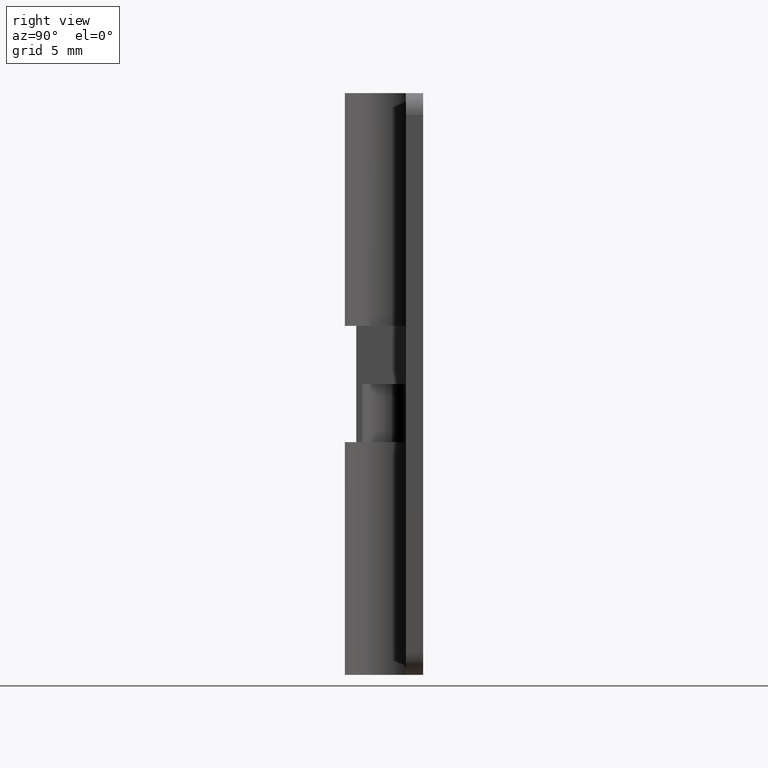
[diagram: clean part render]
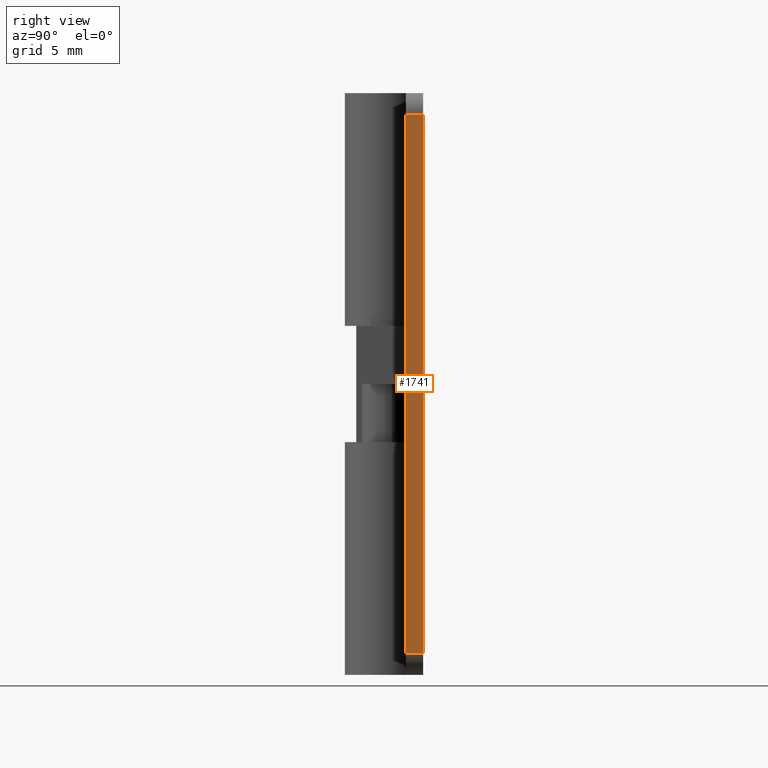
[diagram: same view with one face highlighted and labeled with its STEP entity id]
A machine part, right view. The second image highlights one B-rep face of the part: STEP entity #1741.
In plain terms, the highlighted face is a freeform B-spline surface patch.
Its self-contained STEP definition (entity closure, byte-faithful):
#1433=CARTESIAN_POINT('',(14.999993000000000,1.500000000000115,38.499953999999953));
#1434=VERTEX_POINT('',#1433);
#1452=CARTESIAN_POINT('',(14.999993000000000,2.699997000000110,38.499953999999953));
#1453=VERTEX_POINT('',#1452);
#1454=CARTESIAN_POINT('',(14.999993000000000,2.699997000000110,38.499953999999953));
#1455=CARTESIAN_POINT('',(14.999993000000000,1.500000000000115,38.499953999999953));
#1456=QUASI_UNIFORM_CURVE('',1,(#1454,#1455),.UNSPECIFIED.,.F.,.U.);
#1457=EDGE_CURVE('',#1453,#1434,#1456,.T.);
#1500=CARTESIAN_POINT('',(14.999993000000000,1.500000000000115,1.499962000000020));
#1501=VERTEX_POINT('',#1500);
#1522=CARTESIAN_POINT('',(14.999993000000000,2.699997000000110,1.499962000000020));
#1523=VERTEX_POINT('',#1522);
#1537=CARTESIAN_POINT('',(14.999993000000000,1.500000000000115,1.499962000000020));
#1538=CARTESIAN_POINT('',(14.999993000000000,2.699997000000110,1.499962000000020));
#1539=QUASI_UNIFORM_CURVE('',1,(#1537,#1538),.UNSPECIFIED.,.F.,.U.);
#1540=EDGE_CURVE('',#1501,#1523,#1539,.T.);
#1722=CARTESIAN_POINT('',(14.999993000000000,1.440060156463175,40.348103876016253));
#1723=CARTESIAN_POINT('',(14.999993000000000,1.440060156463175,-0.348188537627680));
#1724=CARTESIAN_POINT('',(14.999993000000000,2.759936789893005,40.348103876016253));
#1725=CARTESIAN_POINT('',(14.999993000000000,2.759936789893005,-0.348188537627680));
#1726=B_SPLINE_SURFACE_WITH_KNOTS('',1,1,((#1722,#1724),(#1723,#1725)),.UNSPECIFIED.,.F.,.F.,.U.,(2,2),(2,2),(0.0,40.696292413643917),(0.041708337925747,0.958291624821350),.UNSPECIFIED.);
#1727=CARTESIAN_POINT('',(14.999993000000000,1.500000000000115,1.499962000000020));
#1728=CARTESIAN_POINT('',(14.999993000000000,1.500000000000115,38.499953999999953));
#1729=QUASI_UNIFORM_CURVE('',1,(#1727,#1728),.UNSPECIFIED.,.F.,.U.);
#1730=EDGE_CURVE('',#1501,#1434,#1729,.T.);
#1731=ORIENTED_EDGE('',*,*,#1730,.F.);
#1732=ORIENTED_EDGE('',*,*,#1540,.T.);
#1733=CARTESIAN_POINT('',(14.999993000000000,2.699997000000110,1.499962000000020));
#1734=CARTESIAN_POINT('',(14.999993000000000,2.699997000000110,38.499953999999953));
#1735=QUASI_UNIFORM_CURVE('',1,(#1733,#1734),.UNSPECIFIED.,.F.,.U.);
#1736=EDGE_CURVE('',#1523,#1453,#1735,.T.);
#1737=ORIENTED_EDGE('',*,*,#1736,.T.);
#1738=ORIENTED_EDGE('',*,*,#1457,.T.);
#1739=EDGE_LOOP('',(#1731,#1732,#1737,#1738));
#1740=FACE_OUTER_BOUND('',#1739,.T.);
#1741=ADVANCED_FACE('',(#1740),#1726,.T.);